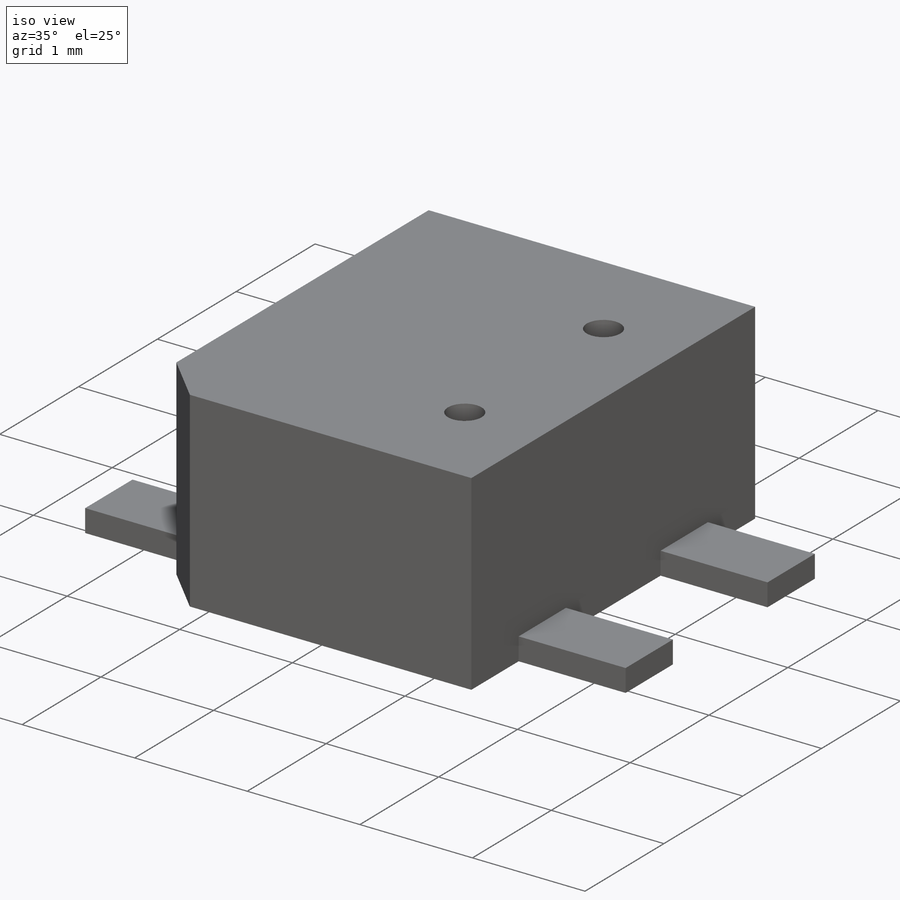
[diagram: iso view]
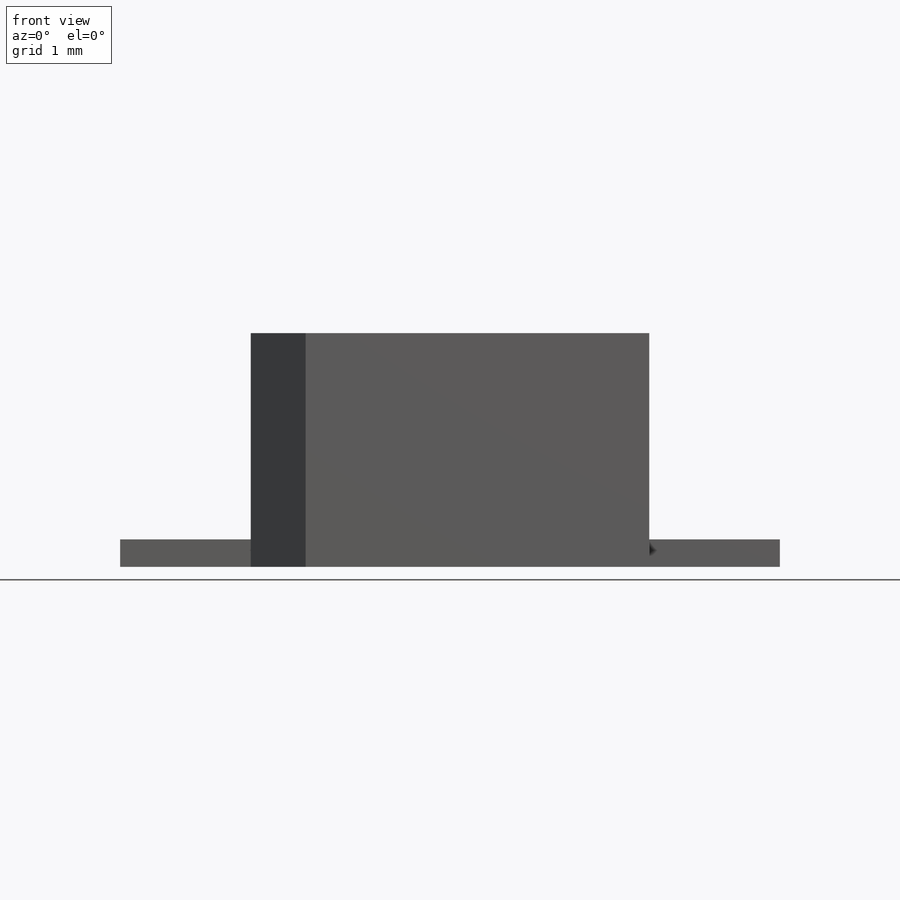
[diagram: front view]
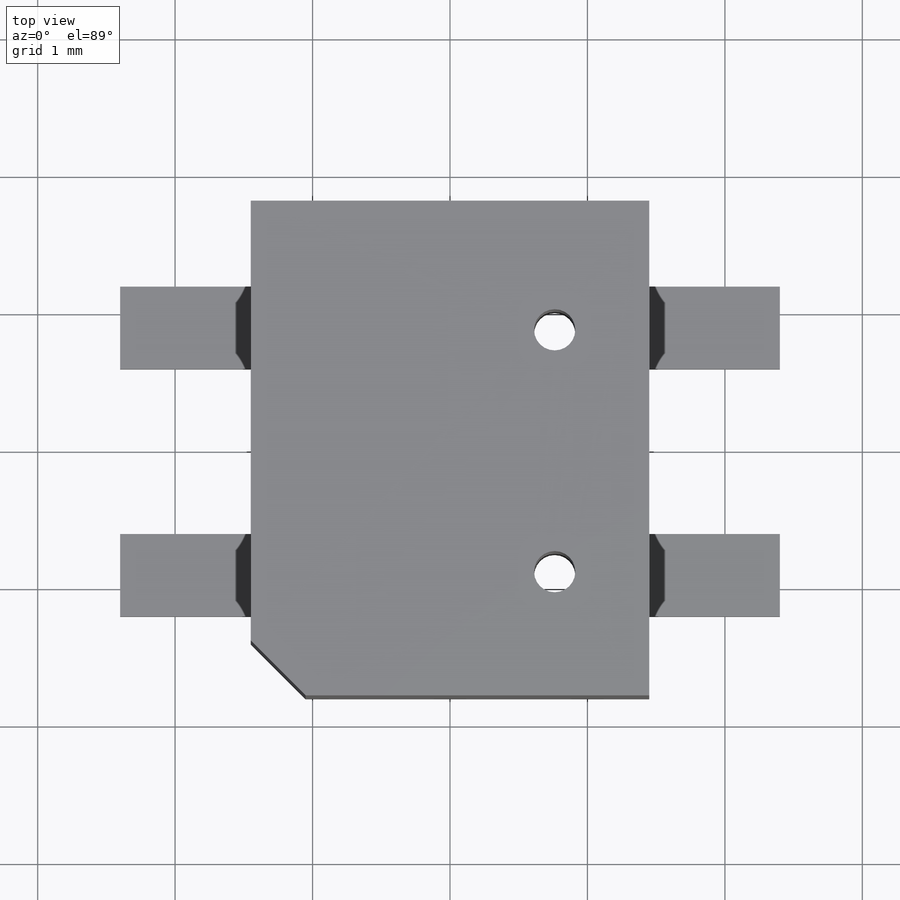
[diagram: top view]
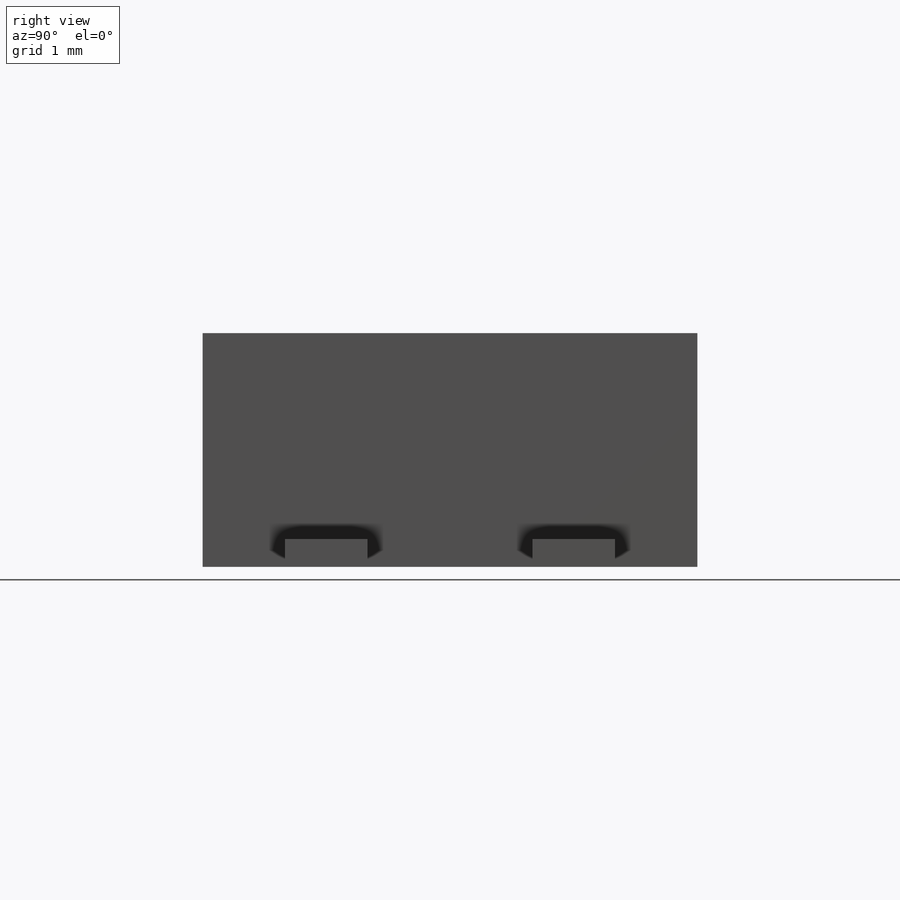
[diagram: right view]
SOLIDWORKS PART (.sldprt)
format: sldprt  version: not decoded by parser v0  size: 202,240 bytes
history: native  units: mm
features: sketch x5, extrude x2, cut_extrude x2, material x1 (+12 scaffold rows collapsed)
feature tree (22):
  scaffold x12  (default folders/planes/origin — collapsed)
  material  "재질 <지정안함>"
  sketch  "스케치1"  dims[D1=2.9mm D2=3.6mm D3=1.45mm D4=1.8mm]
  extrude  "보스-돌출1"  Depth=1.7mm
  sketch  "스케치3"  dims[D1=0.4mm D2=0.4mm]
  cut_extrude  "컷-돌출1"  Depth=1.7mm
  sketch  "스케치5"  dims[D1=2.4mm D2=2.4mm D3=1.2mm D4=1.2mm D5=0.6mm D6=0.6mm]
  extrude  "보스-돌출2"  Depth=0.2mm
  sketch  "스케치4"  dims[c1.D4=~0.154313mm c1.D1=~0.68838mm c1.D2=0.0deg c2.D2=0.9mm c2.D3=0.9mm c3.D2=0.94mm c3.D3=0.94mm]
  cut_extrude  "컷-돌출2"  Depth=1.7mm
  sketch  "스케치6"  dims[D1=~0.76162mm]
decode coverage: 9 of 9 modeling features carry decoded parameters
note: ~ marks probable driven/reference dimensions
note: suppression state not decoded; provenance and decode notes live in map.json
